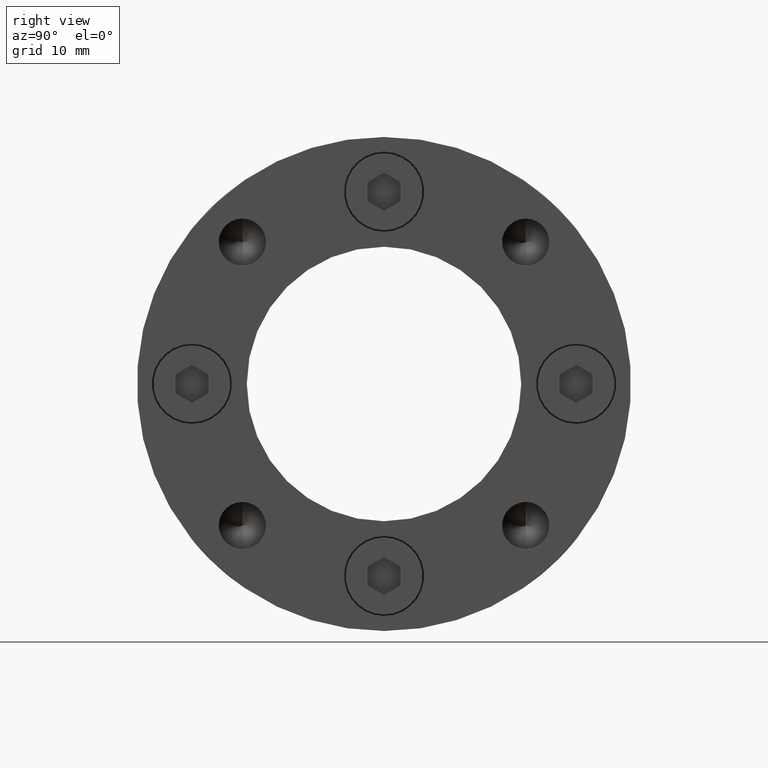
[diagram: clean part render]
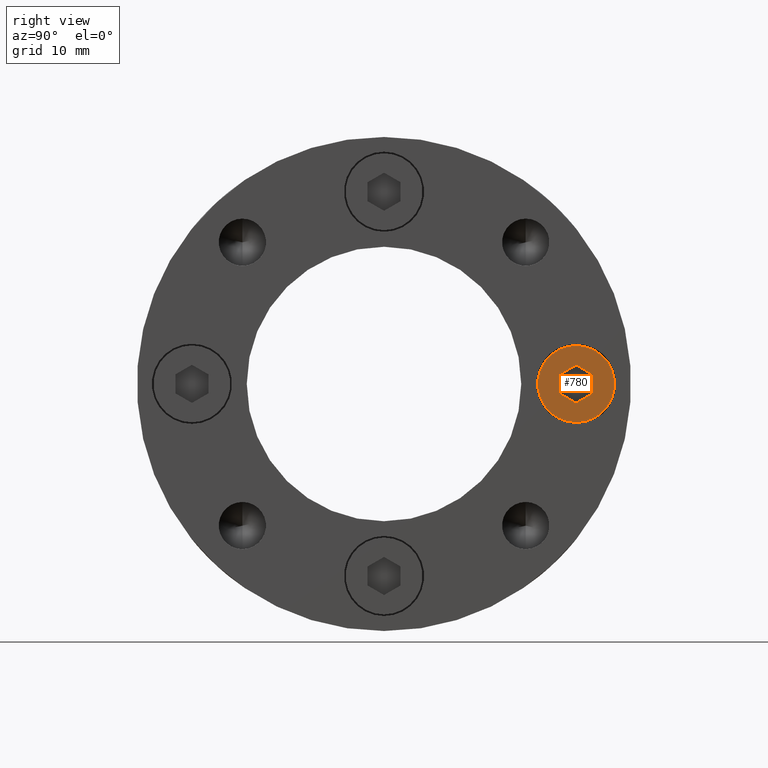
[diagram: same view with one face highlighted and labeled with its STEP entity id]
A machine part, right view. The second image highlights one B-rep face of the part: STEP entity #780.
In plain terms, the highlighted planar face has unit normal (1, 0, 0).
Its self-contained STEP definition (entity closure, byte-faithful):
#448 = VERTEX_POINT ( 'NONE', #2378 ) ;
#566 = VERTEX_POINT ( 'NONE', #2495 ) ;
#571 = VERTEX_POINT ( 'NONE', #2500 ) ;
#572 = VERTEX_POINT ( 'NONE', #2501 ) ;
#575 = VERTEX_POINT ( 'NONE', #2504 ) ;
#576 = VERTEX_POINT ( 'NONE', #2505 ) ;
#579 = VERTEX_POINT ( 'NONE', #2508 ) ;
#580 = VERTEX_POINT ( 'NONE', #2509 ) ;
#780 = ADVANCED_FACE ( 'NONE', ( #3077, #3080 ), #2713, .T. ) ;
#797 = EDGE_LOOP ( 'NONE', ( #1174, #1175, #1176, #1177, #1178, #1179 ) ) ;
#799 = EDGE_LOOP ( 'NONE', ( #1180, #1181 ) ) ;
#913 = EDGE_CURVE ( 'NONE', #448, #572, #3229, .T. ) ;
#919 = EDGE_CURVE ( 'NONE', #572, #448, #3240, .T. ) ;
#920 = EDGE_CURVE ( 'NONE', #571, #575, #3241, .T. ) ;
#921 = EDGE_CURVE ( 'NONE', #579, #571, #3237, .T. ) ;
#922 = EDGE_CURVE ( 'NONE', #580, #579, #3242, .T. ) ;
#923 = EDGE_CURVE ( 'NONE', #566, #580, #3244, .T. ) ;
#924 = EDGE_CURVE ( 'NONE', #576, #566, #3246, .T. ) ;
#925 = EDGE_CURVE ( 'NONE', #575, #576, #3248, .T. ) ;
#1174 = ORIENTED_EDGE ( 'NONE', *, *, #920, .F. ) ;
#1175 = ORIENTED_EDGE ( 'NONE', *, *, #921, .F. ) ;
#1176 = ORIENTED_EDGE ( 'NONE', *, *, #922, .F. ) ;
#1177 = ORIENTED_EDGE ( 'NONE', *, *, #923, .F. ) ;
#1178 = ORIENTED_EDGE ( 'NONE', *, *, #924, .F. ) ;
#1179 = ORIENTED_EDGE ( 'NONE', *, *, #925, .F. ) ;
#1180 = ORIENTED_EDGE ( 'NONE', *, *, #919, .T. ) ;
#1181 = ORIENTED_EDGE ( 'NONE', *, *, #913, .T. ) ;
#1357 = AXIS2_PLACEMENT_3D ( 'NONE', #2705, #2715, #2716 ) ;
#1446 = AXIS2_PLACEMENT_3D ( 'NONE', #3388, #3389, #3390 ) ;
#1450 = AXIS2_PLACEMENT_3D ( 'NONE', #3405, #3406, #3407 ) ;
#2378 = CARTESIAN_POINT ( 'NONE',  ( 4.286263797015736600E-016, 4.000000000000000000, 3.500000000000000000 ) ) ;
#2495 = CARTESIAN_POINT ( 'NONE',  ( -1.499999999999999100, 4.000000000000000000, 0.8660254037844393700 ) ) ;
#2500 = CARTESIAN_POINT ( 'NONE',  ( 1.499999999999999800, 4.000000000000000000, -0.8660254037844389300 ) ) ;
#2501 = CARTESIAN_POINT ( 'NONE',  ( 0.0000000000000000000, 4.000000000000000000, -3.500000000000000000 ) ) ;
#2504 = CARTESIAN_POINT ( 'NONE',  ( -1.084202172485504400E-016, 4.000000000000000000, -1.732050807568877200 ) ) ;
#2505 = CARTESIAN_POINT ( 'NONE',  ( -1.499999999999999800, 4.000000000000000000, -0.8660254037844386000 ) ) ;
#2508 = CARTESIAN_POINT ( 'NONE',  ( 1.500000000000000000, 4.000000000000000000, 0.8660254037844387100 ) ) ;
#2509 = CARTESIAN_POINT ( 'NONE',  ( 4.046263255784118500E-016, 4.000000000000000000, 1.732050807568877400 ) ) ;
#2705 = CARTESIAN_POINT ( 'NONE',  ( 0.0000000000000000000, 4.000000000000000000, 0.0000000000000000000 ) ) ;
#2713 = PLANE ( 'NONE',  #1357 ) ;
#2715 = DIRECTION ( 'NONE',  ( 0.0000000000000000000, 1.000000000000000000, 0.0000000000000000000 ) ) ;
#2716 = DIRECTION ( 'NONE',  ( 0.0000000000000000000, -0.0000000000000000000, 1.000000000000000000 ) ) ;
#3077 = FACE_BOUND ( 'NONE', #797, .T. ) ;
#3080 = FACE_OUTER_BOUND ( 'NONE', #799, .T. ) ;
#3229 = CIRCLE ( 'NONE', #1446, 3.500000000000000000 ) ;
#3237 = LINE ( 'NONE', #3404, #3245 ) ;
#3240 = CIRCLE ( 'NONE', #1450, 3.500000000000000000 ) ;
#3241 = LINE ( 'NONE', #3398, #3243 ) ;
#3242 = LINE ( 'NONE', #3403, #3247 ) ;
#3243 = VECTOR ( 'NONE', #3399, 1000.000000000000000 ) ;
#3244 = LINE ( 'NONE', #3408, #3249 ) ;
#3245 = VECTOR ( 'NONE', #3409, 1000.000000000000000 ) ;
#3246 = LINE ( 'NONE', #3410, #3251 ) ;
#3247 = VECTOR ( 'NONE', #3411, 1000.000000000000000 ) ;
#3248 = LINE ( 'NONE', #3412, #3253 ) ;
#3249 = VECTOR ( 'NONE', #3413, 1000.000000000000100 ) ;
#3251 = VECTOR ( 'NONE', #3414, 1000.000000000000000 ) ;
#3253 = VECTOR ( 'NONE', #3415, 1000.000000000000000 ) ;
#3388 = CARTESIAN_POINT ( 'NONE',  ( 0.0000000000000000000, 4.000000000000000000, 0.0000000000000000000 ) ) ;
#3389 = DIRECTION ( 'NONE',  ( 0.0000000000000000000, 1.000000000000000000, 0.0000000000000000000 ) ) ;
#3390 = DIRECTION ( 'NONE',  ( 0.0000000000000000000, 0.0000000000000000000, 1.000000000000000000 ) ) ;
#3398 = CARTESIAN_POINT ( 'NONE',  ( 1.499999999999999800, 4.000000000000000000, -0.8660254037844389300 ) ) ;
#3399 = DIRECTION ( 'NONE',  ( -0.8660254037844387100, 0.0000000000000000000, -0.4999999999999998300 ) ) ;
#3403 = CARTESIAN_POINT ( 'NONE',  ( 4.046263255784118500E-016, 4.000000000000000000, 1.732050807568877400 ) ) ;
#3404 = CARTESIAN_POINT ( 'NONE',  ( 1.500000000000000000, 4.000000000000000000, 0.8660254037844387100 ) ) ;
#3405 = CARTESIAN_POINT ( 'NONE',  ( 0.0000000000000000000, 4.000000000000000000, 0.0000000000000000000 ) ) ;
#3406 = DIRECTION ( 'NONE',  ( 0.0000000000000000000, 1.000000000000000000, 0.0000000000000000000 ) ) ;
#3407 = DIRECTION ( 'NONE',  ( 0.0000000000000000000, 0.0000000000000000000, 1.000000000000000000 ) ) ;
#3408 = CARTESIAN_POINT ( 'NONE',  ( -1.499999999999999100, 4.000000000000000000, 0.8660254037844393700 ) ) ;
#3409 = DIRECTION ( 'NONE',  ( -1.251928832280965900E-016, 0.0000000000000000000, -1.000000000000000000 ) ) ;
#3410 = CARTESIAN_POINT ( 'NONE',  ( -1.499999999999999800, 4.000000000000000000, -0.8660254037844386000 ) ) ;
#3411 = DIRECTION ( 'NONE',  ( 0.8660254037844386000, 0.0000000000000000000, -0.5000000000000001100 ) ) ;
#3412 = CARTESIAN_POINT ( 'NONE',  ( -1.767567020076689400E-016, 4.000000000000000000, -1.732050807568877200 ) ) ;
#3413 = DIRECTION ( 'NONE',  ( 0.8660254037844387100, 0.0000000000000000000, 0.4999999999999998300 ) ) ;
#3414 = DIRECTION ( 'NONE',  ( 3.755786496842897100E-016, 0.0000000000000000000, 1.000000000000000000 ) ) ;
#3415 = DIRECTION ( 'NONE',  ( -0.8660254037844386000, 0.0000000000000000000, 0.5000000000000001100 ) ) ;